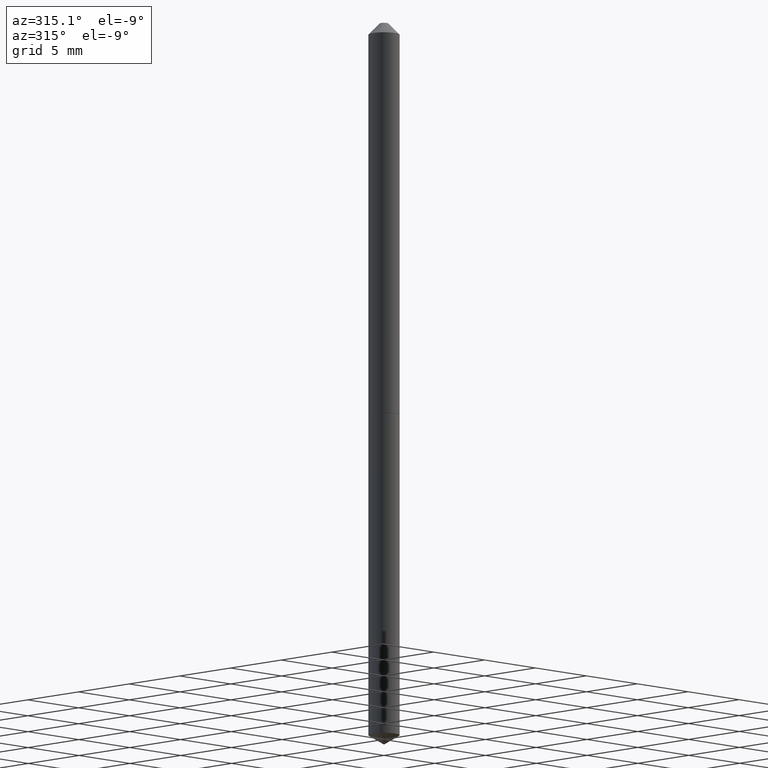
[diagram: clean part render]
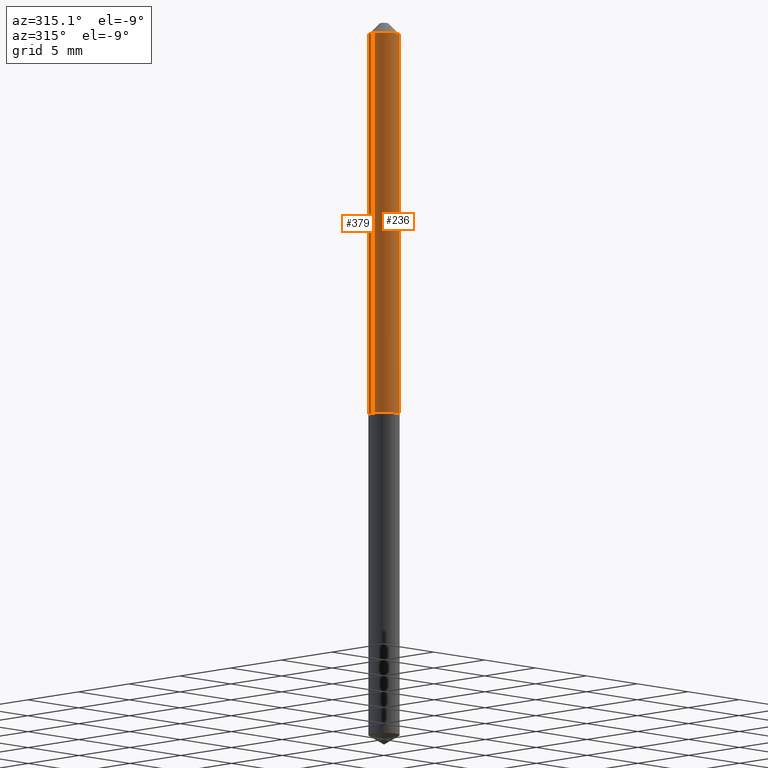
[diagram: same view with one multi-face feature highlighted, each face labeled with its STEP entity id]
A machine part, auxiliary view. The highlighted faces form ONE feature: a constant-radius fillet chain: 2 tangent blend faces with common blend radius 1.0922 mm. The faces share edges in the B-rep.
Their STEP definitions:
[1] entity #236 (Cylinder):
#6 = DIRECTION ( 'NONE',  ( -2.445468806185136877E-29, 3.491481338843145188E-15, 1.000000000000000000 ) ) ;
#8 = CARTESIAN_POINT ( 'NONE',  ( 2.654556389113965852E-29, -3.790002993314234131E-15, -1.085499999999999909 ) ) ;
#10 = CARTESIAN_POINT ( 'NONE',  ( -0.04300000000000001044, -1.644022516199696687E-15, -0.03125000000000020817 ) ) ;
#16 = CIRCLE ( 'NONE', #138, 0.04300000000000014921 ) ;
#22 = VERTEX_POINT ( 'NONE', #10 ) ;
#28 = CARTESIAN_POINT ( 'NONE',  ( 0.04300000000000014921, -4.090270388454744578E-15, -1.085499999999999909 ) ) ;
#42 = ORIENTED_EDGE ( 'NONE', *, *, #291, .T. ) ;
#58 = CARTESIAN_POINT ( 'NONE',  ( -0.04300000000000007983, 3.055333763768436471E-16, -2.115142088809613253E-30 ) ) ;
#93 = CARTESIAN_POINT ( 'NONE',  ( 0.000000000000000000, 0.000000000000000000, 0.000000000000000000 ) ) ;
#94 = LINE ( 'NONE', #157, #96 ) ;
#95 = VECTOR ( 'NONE', #326, 39.37007874015748143 ) ;
#96 = VECTOR ( 'NONE', #6, 39.37007874015748143 ) ;
#110 = VERTEX_POINT ( 'NONE', #28 ) ;
#122 = EDGE_LOOP ( 'NONE', ( #322, #42, #378, #210 ) ) ;
#138 = AXIS2_PLACEMENT_3D ( 'NONE', #8, #186, #309 ) ;
#140 = VERTEX_POINT ( 'NONE', #296 ) ;
#150 = EDGE_CURVE ( 'NONE', #140, #22, #275, .T. ) ;
#157 = CARTESIAN_POINT ( 'NONE',  ( 0.04300000000000007983, -3.002673951405100030E-16, 2.096756013592256259E-30 ) ) ;
#159 = AXIS2_PLACEMENT_3D ( 'NONE', #93, #240, #211 ) ;
#161 = CARTESIAN_POINT ( 'NONE',  ( 7.642090019328602662E-31, -1.091087918388490267E-16, -0.03125000000000020817 ) ) ;
#186 = DIRECTION ( 'NONE',  ( -2.445468806185136597E-29, 3.491481338843145583E-15, 1.000000000000000000 ) ) ;
#188 = CARTESIAN_POINT ( 'NONE',  ( 0.04300000000000001044, -4.093761869793585120E-16, -0.03125000000000020817 ) ) ;
#210 = ORIENTED_EDGE ( 'NONE', *, *, #351, .F. ) ;
#211 = DIRECTION ( 'NONE',  ( 1.000000000000000000, -6.982962677686265922E-15, 4.876176775795935793E-29 ) ) ;
#236 = ADVANCED_FACE ( 'NONE', ( #242 ), #356, .T. ) ;
#240 = DIRECTION ( 'NONE',  ( -2.445468806185136597E-29, 3.491481338843145583E-15, 1.000000000000000000 ) ) ;
#242 = FACE_OUTER_BOUND ( 'NONE', #122, .T. ) ;
#246 = CIRCLE ( 'NONE', #359, 0.04300000000000001044 ) ;
#248 = DIRECTION ( 'NONE',  ( 1.000000000000000000, -6.982962677686265922E-15, 0.000000000000000000 ) ) ;
#275 = LINE ( 'NONE', #58, #95 ) ;
#291 = EDGE_CURVE ( 'NONE', #140, #110, #16, .T. ) ;
#296 = CARTESIAN_POINT ( 'NONE',  ( -0.04300000000000014921, -3.484469616937389991E-15, -1.085499999999999909 ) ) ;
#304 = EDGE_CURVE ( 'NONE', #110, #342, #94, .T. ) ;
#309 = DIRECTION ( 'NONE',  ( 1.000000000000000000, -6.982962677686262766E-15, 0.000000000000000000 ) ) ;
#310 = DIRECTION ( 'NONE',  ( -2.445468806185136597E-29, 3.491481338843145583E-15, 1.000000000000000000 ) ) ;
#322 = ORIENTED_EDGE ( 'NONE', *, *, #150, .F. ) ;
#326 = DIRECTION ( 'NONE',  ( -2.445468806185136877E-29, 3.491481338843145188E-15, 1.000000000000000000 ) ) ;
#342 = VERTEX_POINT ( 'NONE', #188 ) ;
#351 = EDGE_CURVE ( 'NONE', #22, #342, #246, .T. ) ;
#356 = CYLINDRICAL_SURFACE ( 'NONE', #159, 0.04300000000000007983 ) ;
#359 = AXIS2_PLACEMENT_3D ( 'NONE', #161, #310, #248 ) ;
#378 = ORIENTED_EDGE ( 'NONE', *, *, #304, .T. ) ;
[2] entity #379 (Cylinder):
#1 = EDGE_CURVE ( 'NONE', #342, #22, #3, .T. ) ;
#3 = CIRCLE ( 'NONE', #358, 0.04300000000000001044 ) ;
#5 = DIRECTION ( 'NONE',  ( 1.000000000000000000, -6.982962677686262766E-15, 0.000000000000000000 ) ) ;
#6 = DIRECTION ( 'NONE',  ( -2.445468806185136877E-29, 3.491481338843145188E-15, 1.000000000000000000 ) ) ;
#10 = CARTESIAN_POINT ( 'NONE',  ( -0.04300000000000001044, -1.644022516199696687E-15, -0.03125000000000020817 ) ) ;
#13 = ORIENTED_EDGE ( 'NONE', *, *, #1, .F. ) ;
#22 = VERTEX_POINT ( 'NONE', #10 ) ;
#28 = CARTESIAN_POINT ( 'NONE',  ( 0.04300000000000014921, -4.090270388454744578E-15, -1.085499999999999909 ) ) ;
#58 = CARTESIAN_POINT ( 'NONE',  ( -0.04300000000000007983, 3.055333763768436471E-16, -2.115142088809613253E-30 ) ) ;
#87 = ORIENTED_EDGE ( 'NONE', *, *, #262, .T. ) ;
#94 = LINE ( 'NONE', #157, #96 ) ;
#95 = VECTOR ( 'NONE', #326, 39.37007874015748143 ) ;
#96 = VECTOR ( 'NONE', #6, 39.37007874015748143 ) ;
#100 = CARTESIAN_POINT ( 'NONE',  ( 0.000000000000000000, 0.000000000000000000, 0.000000000000000000 ) ) ;
#102 = DIRECTION ( 'NONE',  ( 1.000000000000000000, -6.982962677686265922E-15, 4.876176775795935793E-29 ) ) ;
#105 = EDGE_LOOP ( 'NONE', ( #87, #142, #13, #195 ) ) ;
#107 = CIRCLE ( 'NONE', #280, 0.04300000000000014921 ) ;
#110 = VERTEX_POINT ( 'NONE', #28 ) ;
#129 = FACE_OUTER_BOUND ( 'NONE', #105, .T. ) ;
#140 = VERTEX_POINT ( 'NONE', #296 ) ;
#142 = ORIENTED_EDGE ( 'NONE', *, *, #150, .T. ) ;
#150 = EDGE_CURVE ( 'NONE', #140, #22, #275, .T. ) ;
#157 = CARTESIAN_POINT ( 'NONE',  ( 0.04300000000000007983, -3.002673951405100030E-16, 2.096756013592256259E-30 ) ) ;
#188 = CARTESIAN_POINT ( 'NONE',  ( 0.04300000000000001044, -4.093761869793585120E-16, -0.03125000000000020817 ) ) ;
#193 = DIRECTION ( 'NONE',  ( -2.445468806185136597E-29, 3.491481338843145583E-15, 1.000000000000000000 ) ) ;
#195 = ORIENTED_EDGE ( 'NONE', *, *, #304, .F. ) ;
#216 = DIRECTION ( 'NONE',  ( -2.445468806185136597E-29, 3.491481338843145583E-15, 1.000000000000000000 ) ) ;
#229 = CARTESIAN_POINT ( 'NONE',  ( 7.642090019328602662E-31, -1.091087918388490267E-16, -0.03125000000000020817 ) ) ;
#249 = CYLINDRICAL_SURFACE ( 'NONE', #294, 0.04300000000000007983 ) ;
#262 = EDGE_CURVE ( 'NONE', #110, #140, #107, .T. ) ;
#275 = LINE ( 'NONE', #58, #95 ) ;
#280 = AXIS2_PLACEMENT_3D ( 'NONE', #361, #216, #5 ) ;
#294 = AXIS2_PLACEMENT_3D ( 'NONE', #100, #364, #102 ) ;
#296 = CARTESIAN_POINT ( 'NONE',  ( -0.04300000000000014921, -3.484469616937389991E-15, -1.085499999999999909 ) ) ;
#304 = EDGE_CURVE ( 'NONE', #110, #342, #94, .T. ) ;
#313 = DIRECTION ( 'NONE',  ( 1.000000000000000000, -6.982962677686265922E-15, 0.000000000000000000 ) ) ;
#326 = DIRECTION ( 'NONE',  ( -2.445468806185136877E-29, 3.491481338843145188E-15, 1.000000000000000000 ) ) ;
#342 = VERTEX_POINT ( 'NONE', #188 ) ;
#358 = AXIS2_PLACEMENT_3D ( 'NONE', #229, #193, #313 ) ;
#361 = CARTESIAN_POINT ( 'NONE',  ( 2.654556389113965852E-29, -3.790002993314234131E-15, -1.085499999999999909 ) ) ;
#364 = DIRECTION ( 'NONE',  ( -2.445468806185136597E-29, 3.491481338843145583E-15, 1.000000000000000000 ) ) ;
#379 = ADVANCED_FACE ( 'NONE', ( #129 ), #249, .T. ) ;